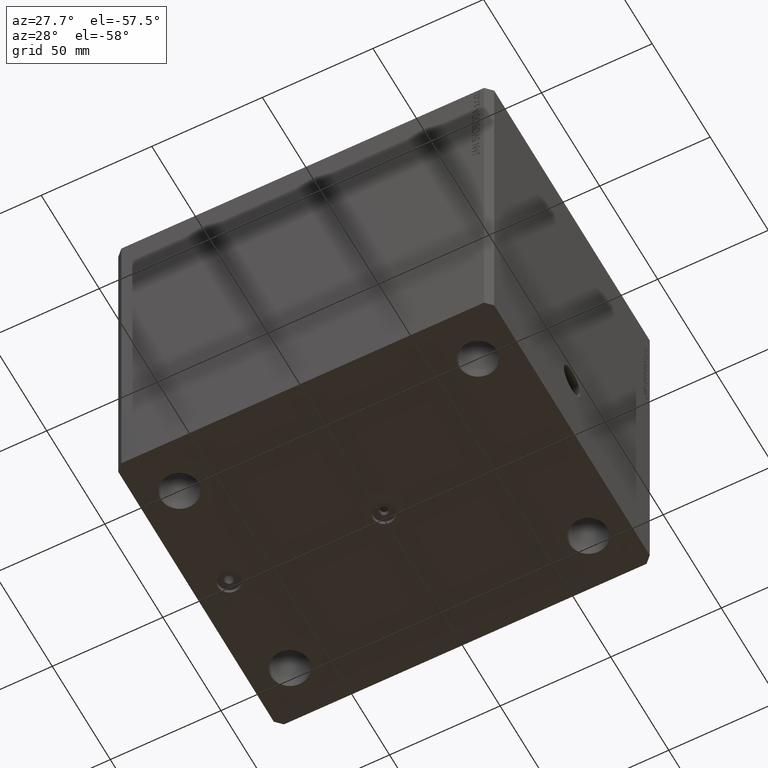
[diagram: clean part render]
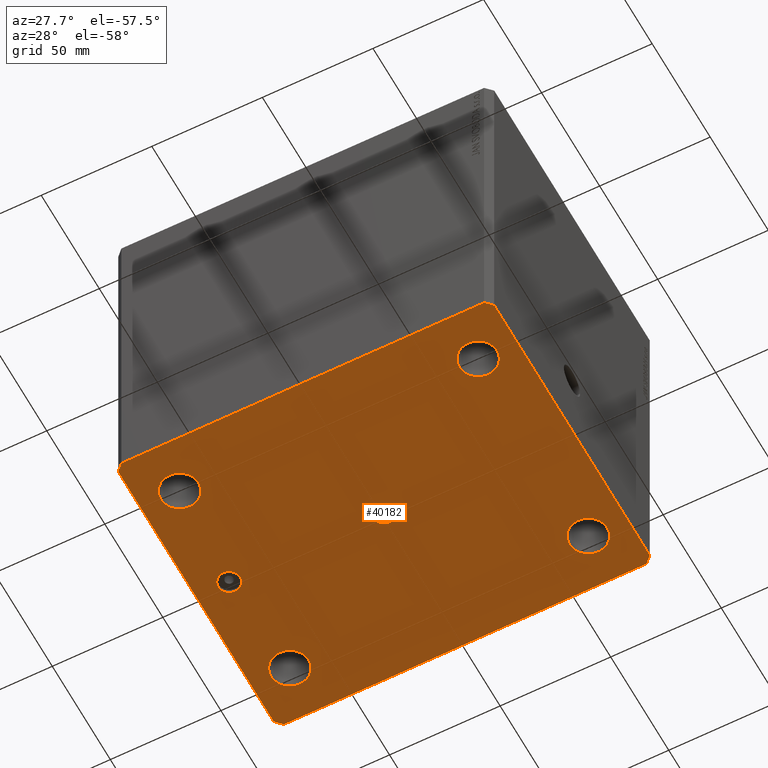
[diagram: same view with one face highlighted and labeled with its STEP entity id]
A machine part, auxiliary view. The second image highlights one B-rep face of the part: STEP entity #40182.
In plain terms, the highlighted planar face has unit normal (0, 0, 1).
Its self-contained STEP definition (entity closure, byte-faithful):
#488 = LINE ( 'NONE', #40395, #8113 ) ;
#672 = CIRCLE ( 'NONE', #17767, 8.499999999999992895 ) ;
#675 = VECTOR ( 'NONE', #19806, 1000.000000000000000 ) ;
#678 = EDGE_CURVE ( 'NONE', #12240, #10437, #21020, .T. ) ;
#718 = CARTESIAN_POINT ( 'NONE',  ( 85.00000000000001421, -67.00000000000000000, -160.0000000000000000 ) ) ;
#917 = AXIS2_PLACEMENT_3D ( 'NONE', #19199, #40357, #26978 ) ;
#953 = DIRECTION ( 'NONE',  ( -0.000000000000000000, -0.000000000000000000, -1.000000000000000000 ) ) ;
#1195 = DIRECTION ( 'NONE',  ( -1.000000000000000000, 0.000000000000000000, 0.000000000000000000 ) ) ;
#1272 = EDGE_LOOP ( 'NONE', ( #15026, #30357 ) ) ;
#2290 = ORIENTED_EDGE ( 'NONE', *, *, #42400, .F. ) ;
#2460 = EDGE_CURVE ( 'NONE', #24572, #22808, #16699, .T. ) ;
#2585 = CARTESIAN_POINT ( 'NONE',  ( 67.50000000000000000, 47.49999999999999289, -160.0000000000000000 ) ) ;
#2769 = FACE_BOUND ( 'NONE', #19735, .T. ) ;
#2801 = DIRECTION ( 'NONE',  ( -0.000000000000000000, -0.000000000000000000, -1.000000000000000000 ) ) ;
#2822 = CARTESIAN_POINT ( 'NONE',  ( 76.00000000000001421, 47.49999999999999289, -160.0000000000000000 ) ) ;
#3047 = CARTESIAN_POINT ( 'NONE',  ( -70.00000000000000000, 0.000000000000000000, -160.0000000000000000 ) ) ;
#3082 = CIRCLE ( 'NONE', #8081, 8.499999999999992895 ) ;
#3196 = AXIS2_PLACEMENT_3D ( 'NONE', #41994, #14792, #1195 ) ;
#3391 = LINE ( 'NONE', #13659, #25901 ) ;
#3455 = EDGE_CURVE ( 'NONE', #6157, #3536, #42805, .T. ) ;
#3536 = VERTEX_POINT ( 'NONE', #22230 ) ;
#3712 = DIRECTION ( 'NONE',  ( -1.000000000000000000, 0.000000000000000000, 0.000000000000000000 ) ) ;
#4281 = VERTEX_POINT ( 'NONE', #7715 ) ;
#4654 = ORIENTED_EDGE ( 'NONE', *, *, #39568, .F. ) ;
#4937 = VECTOR ( 'NONE', #14103, 1000.000000000000000 ) ;
#5682 = PLANE ( 'NONE',  #29091 ) ;
#5787 = CARTESIAN_POINT ( 'NONE',  ( 5.000000000000000000, 6.123233995736765296E-16, -160.0000000000000000 ) ) ;
#6018 = CARTESIAN_POINT ( 'NONE',  ( -85.00000000000001421, 67.00000000000001421, -160.0000000000000000 ) ) ;
#6157 = VERTEX_POINT ( 'NONE', #11294 ) ;
#6270 = LINE ( 'NONE', #32597, #31491 ) ;
#6390 = DIRECTION ( 'NONE',  ( 0.000000000000000000, 0.000000000000000000, -1.000000000000000000 ) ) ;
#6402 = CARTESIAN_POINT ( 'NONE',  ( -67.50000000000000000, 47.50000000000000000, -160.0000000000000000 ) ) ;
#7029 = LINE ( 'NONE', #14381, #41611 ) ;
#7654 = CIRCLE ( 'NONE', #32576, 5.000000000000000000 ) ;
#7715 = CARTESIAN_POINT ( 'NONE',  ( -5.000000000000000000, 0.000000000000000000, -160.0000000000000000 ) ) ;
#7742 = CIRCLE ( 'NONE', #16267, 5.000000000000004441 ) ;
#7748 = VERTEX_POINT ( 'NONE', #5787 ) ;
#7977 = CARTESIAN_POINT ( 'NONE',  ( -67.50000000000000000, 47.50000000000000000, -160.0000000000000000 ) ) ;
#8081 = AXIS2_PLACEMENT_3D ( 'NONE', #7977, #15541, #38954 ) ;
#8113 = VECTOR ( 'NONE', #14094, 1000.000000000000114 ) ;
#8192 = CIRCLE ( 'NONE', #23138, 8.499999999999992895 ) ;
#8798 = CARTESIAN_POINT ( 'NONE',  ( -59.00000000000001421, 47.50000000000000000, -160.0000000000000000 ) ) ;
#9143 = EDGE_CURVE ( 'NONE', #3536, #6157, #23695, .T. ) ;
#9463 = FACE_BOUND ( 'NONE', #20599, .T. ) ;
#10056 = AXIS2_PLACEMENT_3D ( 'NONE', #32508, #28933, #21793 ) ;
#10395 = EDGE_CURVE ( 'NONE', #33535, #13753, #3082, .T. ) ;
#10437 = VERTEX_POINT ( 'NONE', #2822 ) ;
#10754 = CARTESIAN_POINT ( 'NONE',  ( -59.00000000000000000, -47.50000000000001421, -160.0000000000000000 ) ) ;
#11294 = CARTESIAN_POINT ( 'NONE',  ( 59.00000000000000000, -47.50000000000001421, -160.0000000000000000 ) ) ;
#11506 = EDGE_CURVE ( 'NONE', #7748, #4281, #18735, .T. ) ;
#12193 = VERTEX_POINT ( 'NONE', #17209 ) ;
#12198 = EDGE_CURVE ( 'NONE', #19205, #13235, #3391, .T. ) ;
#12240 = VERTEX_POINT ( 'NONE', #20107 ) ;
#12252 = EDGE_CURVE ( 'NONE', #13235, #38389, #488, .T. ) ;
#12483 = LINE ( 'NONE', #16245, #675 ) ;
#12602 = DIRECTION ( 'NONE',  ( 0.000000000000000000, 0.000000000000000000, 1.000000000000000000 ) ) ;
#13005 = VERTEX_POINT ( 'NONE', #18422 ) ;
#13033 = FACE_OUTER_BOUND ( 'NONE', #20451, .T. ) ;
#13235 = VERTEX_POINT ( 'NONE', #39041 ) ;
#13659 = CARTESIAN_POINT ( 'NONE',  ( -85.00000000000001421, 67.00000000000001421, -160.0000000000000000 ) ) ;
#13753 = VERTEX_POINT ( 'NONE', #30215 ) ;
#13972 = DIRECTION ( 'NONE',  ( 0.000000000000000000, 0.000000000000000000, -1.000000000000000000 ) ) ;
#14094 = DIRECTION ( 'NONE',  ( 0.7071067811865474617, -0.7071067811865474617, 0.000000000000000000 ) ) ;
#14103 = DIRECTION ( 'NONE',  ( 3.728360903591945148E-15, 1.000000000000000000, 0.000000000000000000 ) ) ;
#14381 = CARTESIAN_POINT ( 'NONE',  ( -82.00000000000000000, 70.00000000000000000, -160.0000000000000000 ) ) ;
#14440 = VERTEX_POINT ( 'NONE', #43091 ) ;
#14792 = DIRECTION ( 'NONE',  ( 0.000000000000000000, 0.000000000000000000, -1.000000000000000000 ) ) ;
#15026 = ORIENTED_EDGE ( 'NONE', *, *, #23674, .F. ) ;
#15541 = DIRECTION ( 'NONE',  ( -0.000000000000000000, -0.000000000000000000, -1.000000000000000000 ) ) ;
#15568 = DIRECTION ( 'NONE',  ( 1.000000000000000000, 0.000000000000000000, 0.000000000000000000 ) ) ;
#16008 = CARTESIAN_POINT ( 'NONE',  ( -67.49999999999998579, -47.50000000000001421, -160.0000000000000000 ) ) ;
#16179 = DIRECTION ( 'NONE',  ( 1.000000000000000000, 0.000000000000000000, 0.000000000000000000 ) ) ;
#16245 = CARTESIAN_POINT ( 'NONE',  ( 82.00000000000056843, 70.00000000000000000, -160.0000000000000000 ) ) ;
#16267 = AXIS2_PLACEMENT_3D ( 'NONE', #3047, #6390, #26675 ) ;
#16300 = DIRECTION ( 'NONE',  ( 0.7071067811865474617, 0.7071067811865474617, 0.000000000000000000 ) ) ;
#16513 = ORIENTED_EDGE ( 'NONE', *, *, #10395, .F. ) ;
#16699 = LINE ( 'NONE', #36758, #27352 ) ;
#17098 = DIRECTION ( 'NONE',  ( -0.000000000000000000, -0.000000000000000000, -1.000000000000000000 ) ) ;
#17209 = CARTESIAN_POINT ( 'NONE',  ( -75.00000000000001421, 0.000000000000000000, -160.0000000000000000 ) ) ;
#17256 = ORIENTED_EDGE ( 'NONE', *, *, #9143, .F. ) ;
#17493 = EDGE_CURVE ( 'NONE', #14440, #37043, #6270, .T. ) ;
#17767 = AXIS2_PLACEMENT_3D ( 'NONE', #32521, #19567, #15568 ) ;
#18180 = CARTESIAN_POINT ( 'NONE',  ( -82.00000000000000000, -70.00000000000000000, -160.0000000000000000 ) ) ;
#18422 = CARTESIAN_POINT ( 'NONE',  ( -82.00000000000000000, 70.00000000000000000, -160.0000000000000000 ) ) ;
#18735 = CIRCLE ( 'NONE', #22991, 5.000000000000000000 ) ;
#18826 = FACE_BOUND ( 'NONE', #40803, .T. ) ;
#18995 = EDGE_CURVE ( 'NONE', #38389, #14440, #22338, .T. ) ;
#19049 = FACE_BOUND ( 'NONE', #41120, .T. ) ;
#19199 = CARTESIAN_POINT ( 'NONE',  ( 67.49999999999998579, -47.50000000000001421, -160.0000000000000000 ) ) ;
#19205 = VERTEX_POINT ( 'NONE', #6018 ) ;
#19567 = DIRECTION ( 'NONE',  ( -0.000000000000000000, -0.000000000000000000, -1.000000000000000000 ) ) ;
#19735 = EDGE_LOOP ( 'NONE', ( #21684, #2290 ) ) ;
#19806 = DIRECTION ( 'NONE',  ( -1.000000000000000000, 0.000000000000000000, 0.000000000000000000 ) ) ;
#20107 = CARTESIAN_POINT ( 'NONE',  ( 59.00000000000000000, 47.49999999999999289, -160.0000000000000000 ) ) ;
#20232 = ORIENTED_EDGE ( 'NONE', *, *, #12198, .F. ) ;
#20319 = AXIS2_PLACEMENT_3D ( 'NONE', #21232, #953, #21670 ) ;
#20451 = EDGE_LOOP ( 'NONE', ( #4654, #20817, #34447, #40814, #38277, #43606, #20232, #42436 ) ) ;
#20599 = EDGE_LOOP ( 'NONE', ( #17256, #42227 ) ) ;
#20817 = ORIENTED_EDGE ( 'NONE', *, *, #2460, .F. ) ;
#21020 = CIRCLE ( 'NONE', #20319, 8.500000000000007105 ) ;
#21232 = CARTESIAN_POINT ( 'NONE',  ( 67.50000000000000000, 47.49999999999999289, -160.0000000000000000 ) ) ;
#21670 = DIRECTION ( 'NONE',  ( 1.000000000000000000, 0.000000000000000000, 0.000000000000000000 ) ) ;
#21684 = ORIENTED_EDGE ( 'NONE', *, *, #26493, .F. ) ;
#21729 = VERTEX_POINT ( 'NONE', #43031 ) ;
#21793 = DIRECTION ( 'NONE',  ( 1.000000000000000000, 0.000000000000000000, 0.000000000000000000 ) ) ;
#22099 = EDGE_CURVE ( 'NONE', #13753, #33535, #28482, .T. ) ;
#22203 = ORIENTED_EDGE ( 'NONE', *, *, #25939, .F. ) ;
#22230 = CARTESIAN_POINT ( 'NONE',  ( 75.99999999999998579, -47.50000000000001421, -160.0000000000000000 ) ) ;
#22338 = LINE ( 'NONE', #18180, #30806 ) ;
#22808 = VERTEX_POINT ( 'NONE', #29330 ) ;
#22991 = AXIS2_PLACEMENT_3D ( 'NONE', #37816, #13972, #3712 ) ;
#23021 = CARTESIAN_POINT ( 'NONE',  ( -75.99999999999998579, -47.50000000000001421, -160.0000000000000000 ) ) ;
#23138 = AXIS2_PLACEMENT_3D ( 'NONE', #16008, #42001, #35084 ) ;
#23202 = ORIENTED_EDGE ( 'NONE', *, *, #40615, .F. ) ;
#23674 = EDGE_CURVE ( 'NONE', #10437, #12240, #34580, .T. ) ;
#23695 = CIRCLE ( 'NONE', #917, 8.499999999999992895 ) ;
#23804 = VERTEX_POINT ( 'NONE', #23021 ) ;
#24539 = EDGE_CURVE ( 'NONE', #13005, #19205, #7029, .T. ) ;
#24572 = VERTEX_POINT ( 'NONE', #31760 ) ;
#25901 = VECTOR ( 'NONE', #37280, 1000.000000000000000 ) ;
#25939 = EDGE_CURVE ( 'NONE', #21729, #12193, #41641, .T. ) ;
#26493 = EDGE_CURVE ( 'NONE', #36830, #23804, #8192, .T. ) ;
#26675 = DIRECTION ( 'NONE',  ( -1.000000000000000000, 0.000000000000000000, 0.000000000000000000 ) ) ;
#26711 = ORIENTED_EDGE ( 'NONE', *, *, #32953, .F. ) ;
#26978 = DIRECTION ( 'NONE',  ( 1.000000000000000000, 0.000000000000000000, 0.000000000000000000 ) ) ;
#27124 = DIRECTION ( 'NONE',  ( -1.000000000000000000, 0.000000000000000000, 0.000000000000000000 ) ) ;
#27125 = DIRECTION ( 'NONE',  ( 1.000000000000000000, 0.000000000000000000, 0.000000000000000000 ) ) ;
#27352 = VECTOR ( 'NONE', #36538, 1000.000000000000114 ) ;
#28482 = CIRCLE ( 'NONE', #40565, 8.499999999999992895 ) ;
#28933 = DIRECTION ( 'NONE',  ( -0.000000000000000000, -0.000000000000000000, -1.000000000000000000 ) ) ;
#29082 = CARTESIAN_POINT ( 'NONE',  ( 0.000000000000000000, 0.000000000000000000, -160.0000000000000000 ) ) ;
#29091 = AXIS2_PLACEMENT_3D ( 'NONE', #29082, #12602, #32660 ) ;
#29172 = ORIENTED_EDGE ( 'NONE', *, *, #11506, .F. ) ;
#29330 = CARTESIAN_POINT ( 'NONE',  ( 82.00000000000056843, 70.00000000000000000, -160.0000000000000000 ) ) ;
#30215 = CARTESIAN_POINT ( 'NONE',  ( -76.00000000000000000, 47.50000000000000000, -160.0000000000000000 ) ) ;
#30357 = ORIENTED_EDGE ( 'NONE', *, *, #678, .F. ) ;
#30806 = VECTOR ( 'NONE', #35949, 1000.000000000000000 ) ;
#31138 = DIRECTION ( 'NONE',  ( 0.000000000000000000, 0.000000000000000000, -1.000000000000000000 ) ) ;
#31479 = LINE ( 'NONE', #718, #4937 ) ;
#31490 = CARTESIAN_POINT ( 'NONE',  ( -82.00000000000000000, -70.00000000000000000, -160.0000000000000000 ) ) ;
#31491 = VECTOR ( 'NONE', #16300, 1000.000000000000114 ) ;
#31760 = CARTESIAN_POINT ( 'NONE',  ( 85.00000000000052580, 66.99999999999995737, -160.0000000000000000 ) ) ;
#32508 = CARTESIAN_POINT ( 'NONE',  ( 67.49999999999998579, -47.50000000000001421, -160.0000000000000000 ) ) ;
#32521 = CARTESIAN_POINT ( 'NONE',  ( -67.49999999999998579, -47.50000000000001421, -160.0000000000000000 ) ) ;
#32576 = AXIS2_PLACEMENT_3D ( 'NONE', #37388, #31138, #27124 ) ;
#32597 = CARTESIAN_POINT ( 'NONE',  ( 82.00000000000001421, -70.00000000000000000, -160.0000000000000000 ) ) ;
#32660 = DIRECTION ( 'NONE',  ( 1.000000000000000000, 0.000000000000000000, -0.000000000000000000 ) ) ;
#32953 = EDGE_CURVE ( 'NONE', #4281, #7748, #7654, .T. ) ;
#33535 = VERTEX_POINT ( 'NONE', #8798 ) ;
#34049 = CARTESIAN_POINT ( 'NONE',  ( 85.00000000000001421, -67.00000000000000000, -160.0000000000000000 ) ) ;
#34447 = ORIENTED_EDGE ( 'NONE', *, *, #43061, .F. ) ;
#34580 = CIRCLE ( 'NONE', #40264, 8.500000000000007105 ) ;
#34664 = DIRECTION ( 'NONE',  ( -0.7071067811865507924, -0.7071067811865441310, 0.000000000000000000 ) ) ;
#35084 = DIRECTION ( 'NONE',  ( 1.000000000000000000, 0.000000000000000000, 0.000000000000000000 ) ) ;
#35949 = DIRECTION ( 'NONE',  ( 1.000000000000000000, 0.000000000000000000, 0.000000000000000000 ) ) ;
#36434 = FACE_BOUND ( 'NONE', #1272, .T. ) ;
#36538 = DIRECTION ( 'NONE',  ( -0.7071067811865361374, 0.7071067811865588970, 0.000000000000000000 ) ) ;
#36758 = CARTESIAN_POINT ( 'NONE',  ( 85.00000000000052580, 66.99999999999995737, -160.0000000000000000 ) ) ;
#36830 = VERTEX_POINT ( 'NONE', #10754 ) ;
#37043 = VERTEX_POINT ( 'NONE', #34049 ) ;
#37280 = DIRECTION ( 'NONE',  ( 1.035655806553317576E-16, -1.000000000000000000, 0.000000000000000000 ) ) ;
#37388 = CARTESIAN_POINT ( 'NONE',  ( 0.000000000000000000, 0.000000000000000000, -160.0000000000000000 ) ) ;
#37816 = CARTESIAN_POINT ( 'NONE',  ( 0.000000000000000000, 0.000000000000000000, -160.0000000000000000 ) ) ;
#38277 = ORIENTED_EDGE ( 'NONE', *, *, #18995, .F. ) ;
#38389 = VERTEX_POINT ( 'NONE', #31490 ) ;
#38765 = EDGE_LOOP ( 'NONE', ( #23202, #22203 ) ) ;
#38954 = DIRECTION ( 'NONE',  ( 1.000000000000000000, 0.000000000000000000, 0.000000000000000000 ) ) ;
#39041 = CARTESIAN_POINT ( 'NONE',  ( -85.00000000000000000, -67.00000000000000000, -160.0000000000000000 ) ) ;
#39568 = EDGE_CURVE ( 'NONE', #22808, #13005, #12483, .T. ) ;
#40182 = ADVANCED_FACE ( 'NONE', ( #18826, #43564, #2769, #9463, #36434, #19049, #13033 ), #5682, .F. ) ;
#40264 = AXIS2_PLACEMENT_3D ( 'NONE', #2585, #2801, #16179 ) ;
#40357 = DIRECTION ( 'NONE',  ( -0.000000000000000000, -0.000000000000000000, -1.000000000000000000 ) ) ;
#40395 = CARTESIAN_POINT ( 'NONE',  ( -85.00000000000000000, -67.00000000000000000, -160.0000000000000000 ) ) ;
#40565 = AXIS2_PLACEMENT_3D ( 'NONE', #6402, #17098, #27125 ) ;
#40615 = EDGE_CURVE ( 'NONE', #12193, #21729, #7742, .T. ) ;
#40803 = EDGE_LOOP ( 'NONE', ( #26711, #29172 ) ) ;
#40814 = ORIENTED_EDGE ( 'NONE', *, *, #17493, .F. ) ;
#41120 = EDGE_LOOP ( 'NONE', ( #16513, #43324 ) ) ;
#41611 = VECTOR ( 'NONE', #34664, 1000.000000000000114 ) ;
#41641 = CIRCLE ( 'NONE', #3196, 5.000000000000004441 ) ;
#41994 = CARTESIAN_POINT ( 'NONE',  ( -70.00000000000000000, 0.000000000000000000, -160.0000000000000000 ) ) ;
#42001 = DIRECTION ( 'NONE',  ( -0.000000000000000000, -0.000000000000000000, -1.000000000000000000 ) ) ;
#42227 = ORIENTED_EDGE ( 'NONE', *, *, #3455, .F. ) ;
#42400 = EDGE_CURVE ( 'NONE', #23804, #36830, #672, .T. ) ;
#42436 = ORIENTED_EDGE ( 'NONE', *, *, #24539, .F. ) ;
#42805 = CIRCLE ( 'NONE', #10056, 8.499999999999992895 ) ;
#43031 = CARTESIAN_POINT ( 'NONE',  ( -65.00000000000000000, 6.123233995736770227E-16, -160.0000000000000000 ) ) ;
#43061 = EDGE_CURVE ( 'NONE', #37043, #24572, #31479, .T. ) ;
#43091 = CARTESIAN_POINT ( 'NONE',  ( 82.00000000000001421, -70.00000000000000000, -160.0000000000000000 ) ) ;
#43324 = ORIENTED_EDGE ( 'NONE', *, *, #22099, .F. ) ;
#43564 = FACE_BOUND ( 'NONE', #38765, .T. ) ;
#43606 = ORIENTED_EDGE ( 'NONE', *, *, #12252, .F. ) ;